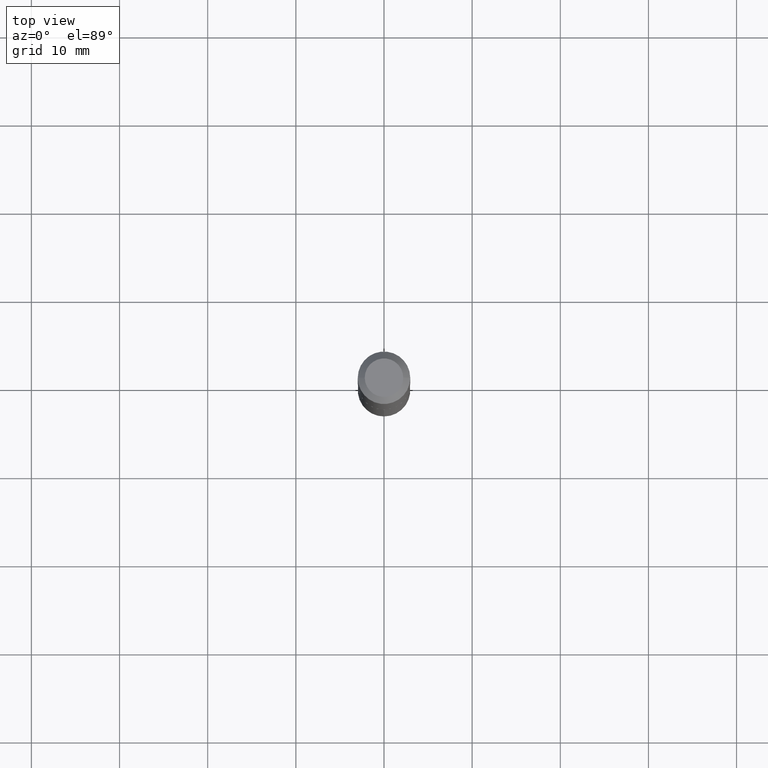
[diagram: clean part render]
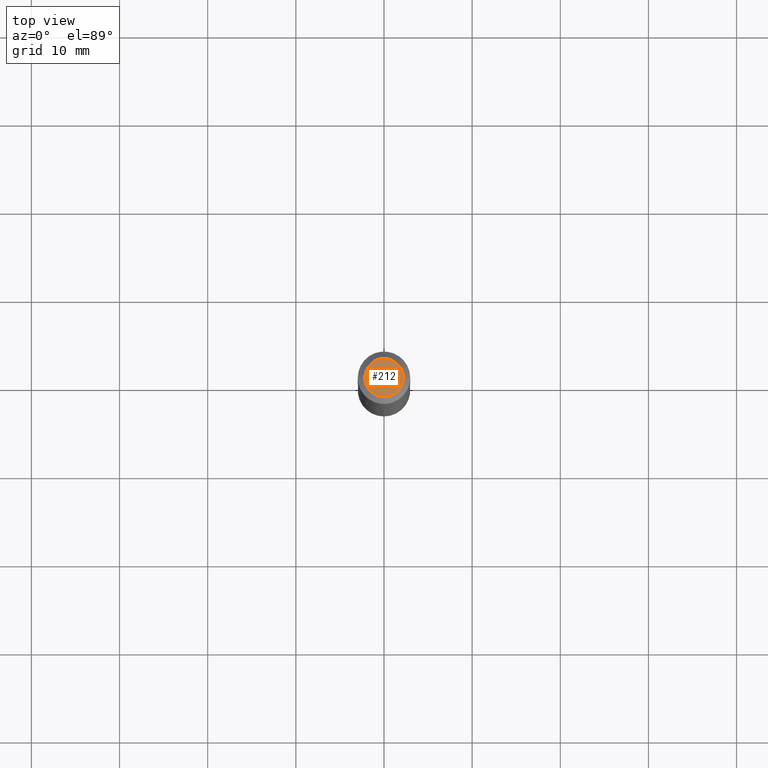
[diagram: same view with one face highlighted and labeled with its STEP entity id]
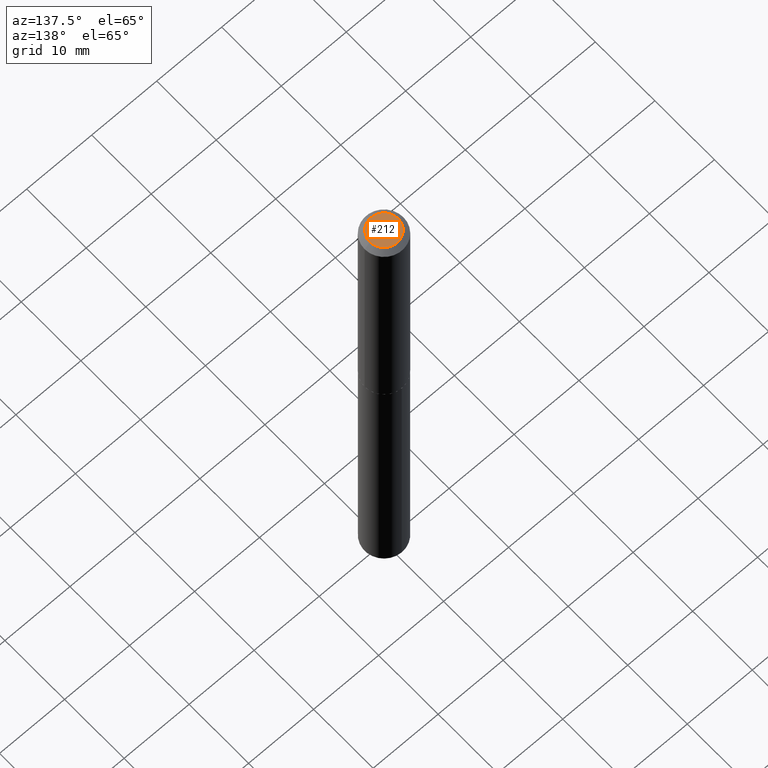
[diagram: same view with one face highlighted and labeled with its STEP entity id]
A machine part, top view. The second image highlights one B-rep face of the part: STEP entity #212.
A second angle (auxiliary view) of the same face is appended — the face is thin or edge-on in the first view.
In plain terms, the highlighted planar face has unit normal (0, -0, -1).
Its self-contained STEP definition (entity closure, byte-faithful):
#1 = DIRECTION ( 'NONE',  ( 1.000000000000000000, -6.982962677686265922E-15, 4.876174969342488661E-29 ) ) ;
#11 = ORIENTED_EDGE ( 'NONE', *, *, #274, .T. ) ;
#13 = DIRECTION ( 'NONE',  ( -1.000000000000000000, 6.982962677686265922E-15, -4.876176775795935793E-29 ) ) ;
#28 = EDGE_CURVE ( 'NONE', #206, #384, #385, .T. ) ;
#40 = CARTESIAN_POINT ( 'NONE',  ( -2.994835545909570354E-49, 4.275831445897321669E-35, 1.224646799147452871E-20 ) ) ;
#45 = EDGE_LOOP ( 'NONE', ( #191, #11 ) ) ;
#52 = AXIS2_PLACEMENT_3D ( 'NONE', #94, #309, #1 ) ;
#71 = DIRECTION ( 'NONE',  ( -2.445468806185136597E-29, 3.491481338843145583E-15, 1.000000000000000000 ) ) ;
#76 = CARTESIAN_POINT ( 'NONE',  ( 0.08595000000000001250, -7.514094800430678722E-16, 2.449293598767447098E-20 ) ) ;
#94 = CARTESIAN_POINT ( 'NONE',  ( -5.989671091819140708E-49, 8.551662891794643338E-35, 2.449293598294905741E-20 ) ) ;
#99 = CARTESIAN_POINT ( 'NONE',  ( -0.08595000000000001250, 6.547400380665580863E-16, 2.449293597856116307E-20 ) ) ;
#167 = PLANE ( 'NONE',  #195 ) ;
#191 = ORIENTED_EDGE ( 'NONE', *, *, #28, .T. ) ;
#195 = AXIS2_PLACEMENT_3D ( 'NONE', #40, #288, #13 ) ;
#198 = FACE_OUTER_BOUND ( 'NONE', #45, .T. ) ;
#206 = VERTEX_POINT ( 'NONE', #99 ) ;
#212 = ADVANCED_FACE ( 'NONE', ( #198 ), #167, .F. ) ;
#250 = CIRCLE ( 'NONE', #295, 0.08595000000000001250 ) ;
#258 = DIRECTION ( 'NONE',  ( 1.000000000000000000, -6.982962677686265922E-15, 4.876174969342488661E-29 ) ) ;
#274 = EDGE_CURVE ( 'NONE', #384, #206, #250, .T. ) ;
#288 = DIRECTION ( 'NONE',  ( 2.438088387897960049E-29, -3.491481338843145188E-15, -1.000000000000000000 ) ) ;
#295 = AXIS2_PLACEMENT_3D ( 'NONE', #348, #71, #258 ) ;
#309 = DIRECTION ( 'NONE',  ( -2.445468806185136597E-29, 3.491481338843145583E-15, 1.000000000000000000 ) ) ;
#348 = CARTESIAN_POINT ( 'NONE',  ( -5.989671091819140708E-49, 8.551662891794643338E-35, 2.449293598294905741E-20 ) ) ;
#384 = VERTEX_POINT ( 'NONE', #76 ) ;
#385 = CIRCLE ( 'NONE', #52, 0.08595000000000001250 ) ;